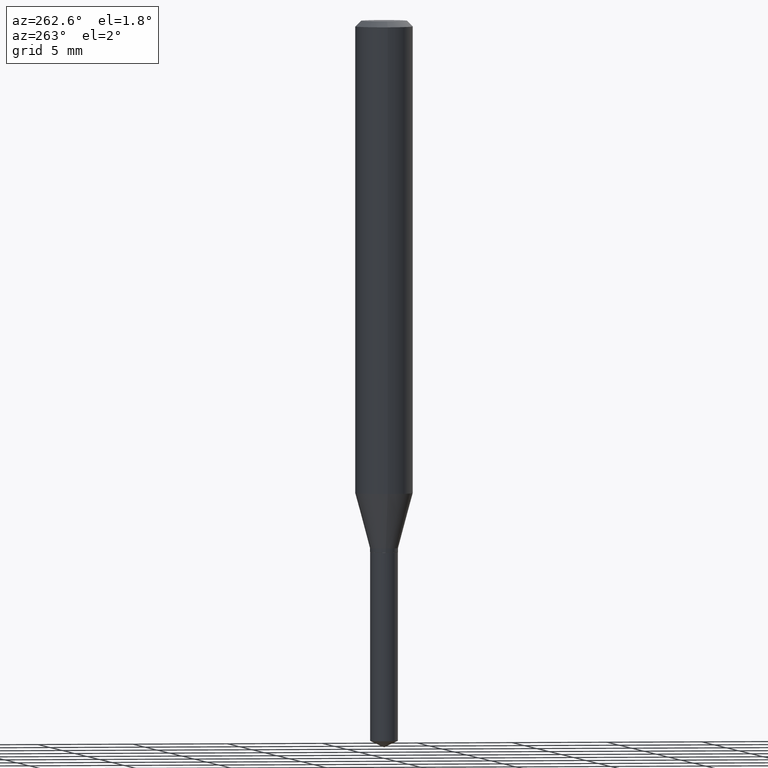
[diagram: clean part render]
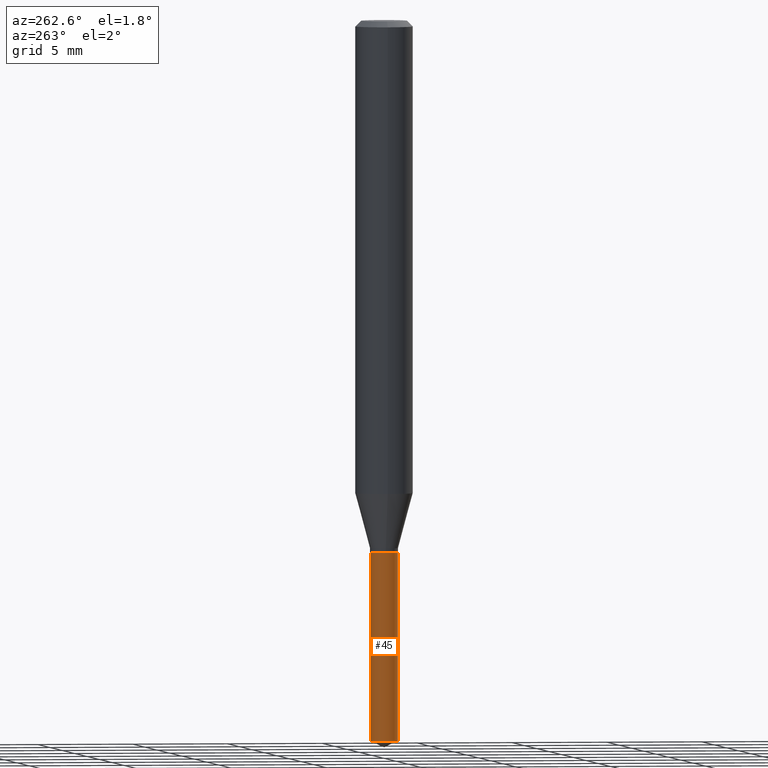
[diagram: same view with one face highlighted and labeled with its STEP entity id]
A machine part, auxiliary view. The second image highlights one B-rep face of the part: STEP entity #45.
In plain terms, the highlighted cylindrical surface (edge-blend (fillet) strip) has radius 0.7302 mm, axis along (-0, 0, 1).
Its self-contained STEP definition (entity closure, byte-faithful):
#31 = DIRECTION ( 'NONE',  ( -2.445470214571802396E-29, 3.491479321953280158E-15, 1.000000000000000000 ) ) ;
#45 = ADVANCED_FACE ( 'NONE', ( #316 ), #196, .T. ) ;
#47 = CARTESIAN_POINT ( 'NONE',  ( 2.042810365310650506E-16, 0.02874999999999482136, -1.482693654828043606 ) ) ;
#51 = CARTESIAN_POINT ( 'NONE',  ( 3.625881628737379550E-29, -5.176796444109405893E-15, -1.482693654828043606 ) ) ;
#59 = CARTESIAN_POINT ( 'NONE',  ( 2.676565608369631794E-29, -3.821426325363822773E-15, -1.094499999999999806 ) ) ;
#69 = LINE ( 'NONE', #132, #222 ) ;
#70 = AXIS2_PLACEMENT_3D ( 'NONE', #51, #311, #89 ) ;
#80 = VERTEX_POINT ( 'NONE', #85 ) ;
#85 = CARTESIAN_POINT ( 'NONE',  ( -2.007601769834534108E-16, -0.02875000000000382111, -1.094499999999999806 ) ) ;
#89 = DIRECTION ( 'NONE',  ( -6.982962677686265922E-15, -1.000000000000000000, 0.000000000000000000 ) ) ;
#92 = DIRECTION ( 'NONE',  ( -6.982962677686265922E-15, -1.000000000000000000, 4.751039988981327336E-15 ) ) ;
#99 = CIRCLE ( 'NONE', #70, 0.02875000000000000125 ) ;
#110 = ORIENTED_EDGE ( 'NONE', *, *, #236, .F. ) ;
#111 = VERTEX_POINT ( 'NONE', #47 ) ;
#132 = CARTESIAN_POINT ( 'NONE',  ( 2.042810365310555350E-16, 0.02874999999999618139, -1.094500000000000028 ) ) ;
#136 = AXIS2_PLACEMENT_3D ( 'NONE', #198, #275, #353 ) ;
#146 = CIRCLE ( 'NONE', #306, 0.02875000000000000125 ) ;
#185 = EDGE_LOOP ( 'NONE', ( #110, #456, #337, #187 ) ) ;
#187 = ORIENTED_EDGE ( 'NONE', *, *, #419, .F. ) ;
#196 = CYLINDRICAL_SURFACE ( 'NONE', #136, 0.02875000000000000125 ) ;
#198 = CARTESIAN_POINT ( 'NONE',  ( 2.676565608369631794E-29, -3.821426325363822773E-15, -1.094499999999999806 ) ) ;
#222 = VECTOR ( 'NONE', #31, 39.37007874015748143 ) ;
#234 = VERTEX_POINT ( 'NONE', #251 ) ;
#236 = EDGE_CURVE ( 'NONE', #111, #234, #69, .T. ) ;
#251 = CARTESIAN_POINT ( 'NONE',  ( 2.042810365310651246E-16, 0.02874999999999618139, -1.094500000000000028 ) ) ;
#275 = DIRECTION ( 'NONE',  ( -2.445470214571802116E-29, 3.491479321953280158E-15, 1.000000000000000000 ) ) ;
#283 = VECTOR ( 'NONE', #383, 39.37007874015748143 ) ;
#306 = AXIS2_PLACEMENT_3D ( 'NONE', #59, #351, #92 ) ;
#307 = VERTEX_POINT ( 'NONE', #446 ) ;
#311 = DIRECTION ( 'NONE',  ( -2.445470214571802116E-29, 3.491479321953280158E-15, 1.000000000000000000 ) ) ;
#316 = FACE_OUTER_BOUND ( 'NONE', #185, .T. ) ;
#317 = CARTESIAN_POINT ( 'NONE',  ( -2.007601769834534108E-16, -0.02875000000000382111, -1.094499999999999806 ) ) ;
#337 = ORIENTED_EDGE ( 'NONE', *, *, #457, .T. ) ;
#351 = DIRECTION ( 'NONE',  ( -2.445470214571802116E-29, 3.491479321953280158E-15, 1.000000000000000000 ) ) ;
#353 = DIRECTION ( 'NONE',  ( -6.982962677686265922E-15, -1.000000000000000000, 4.751039988981327336E-15 ) ) ;
#354 = LINE ( 'NONE', #317, #283 ) ;
#383 = DIRECTION ( 'NONE',  ( -2.445470214571802396E-29, 3.491479321953280158E-15, 1.000000000000000000 ) ) ;
#419 = EDGE_CURVE ( 'NONE', #234, #80, #146, .T. ) ;
#446 = CARTESIAN_POINT ( 'NONE',  ( -2.007601769834439198E-16, -0.02875000000000518113, -1.482693654828043606 ) ) ;
#456 = ORIENTED_EDGE ( 'NONE', *, *, #490, .T. ) ;
#457 = EDGE_CURVE ( 'NONE', #307, #80, #354, .T. ) ;
#490 = EDGE_CURVE ( 'NONE', #111, #307, #99, .T. ) ;